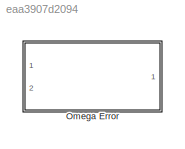
MODEL slx_eaa3907d2094
KIND library
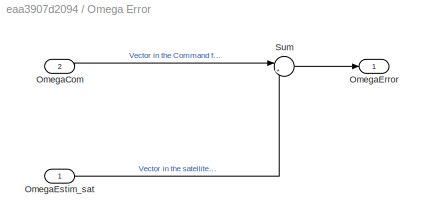
BLOCK [SubSystem] Omega Error
  Ports = [2, 1]
  RequestExecContextInheritance = off
BLOCK [Inport] Omega Error/OmegaCom
  IconDisplay = Port number
  Port = 2
BLOCK [Outport] Omega Error/OmegaError
  IconDisplay = Port number
BLOCK [Inport] Omega Error/OmegaEstim_sat
  IconDisplay = Port number
BLOCK [Sum] Omega Error/Sum
  IconShape = round
  InputSameDT = off
  Inputs = |+-
  OutDataTypeStr = Inherit: Inherit via internal rule
  Ports = [2, 1]
  SaturateOnIntegerOverflow = off
LINE Omega Error/OmegaCom:1 -> Omega Error/Sum:1
LINE Omega Error/OmegaEstim_sat:1 -> Omega Error/Sum:2
LINE Omega Error/Sum:1 -> Omega Error/OmegaError:1
